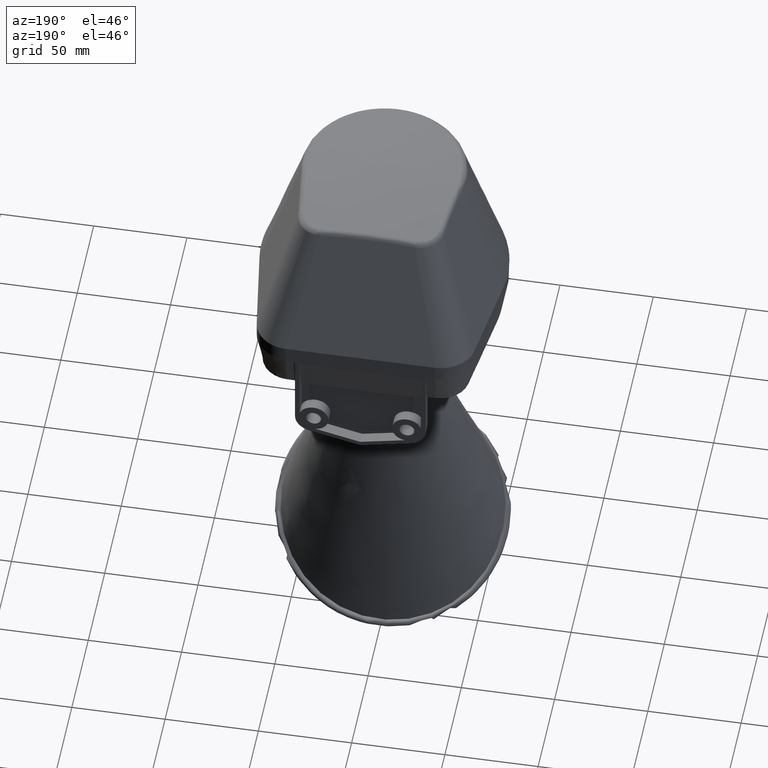
[diagram: clean part render]
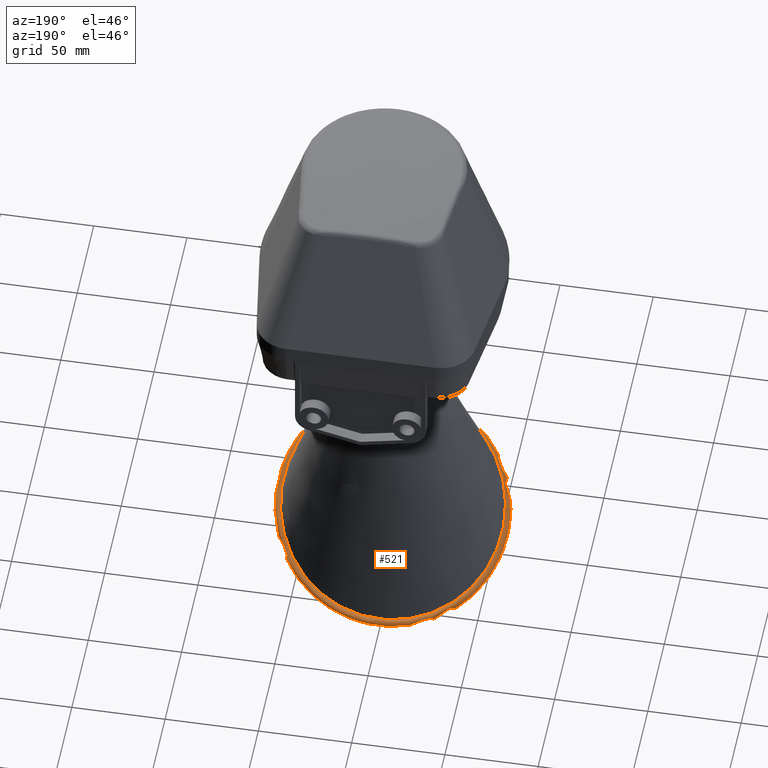
[diagram: same view with one face highlighted and labeled with its STEP entity id]
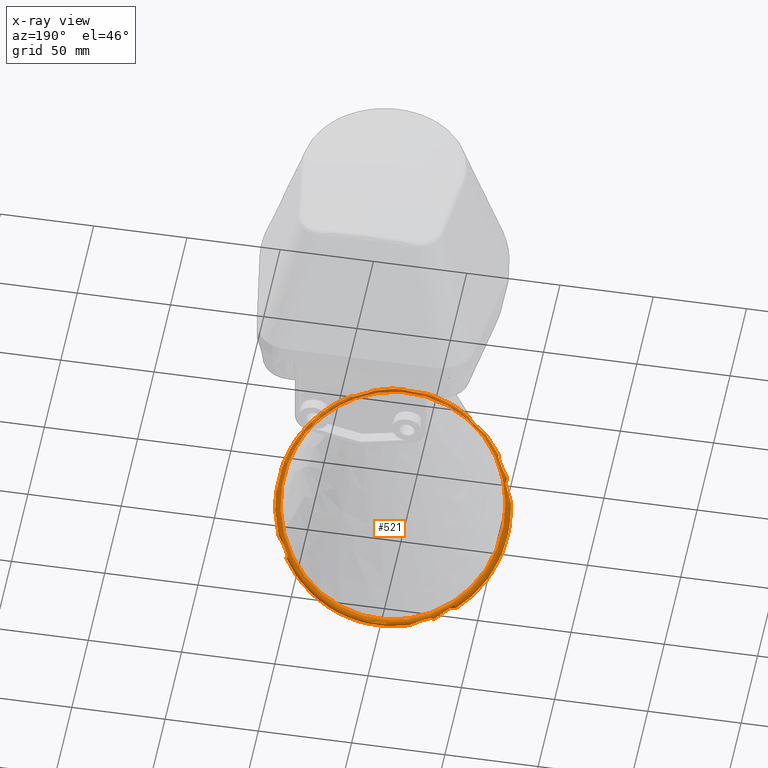
[diagram: x-ray of the same camera — body ghosted, the highlighted face saturated]
A machine part, auxiliary view. The second image highlights one B-rep face of the part: STEP entity #521.
The next image is the same camera in x-ray: the body ghosted, the highlighted face saturated — about 16% of this face is hidden behind the body in this view.
In plain terms, the highlighted toroidal blend (fillet) surface has major radius 61 mm and minor (blend) radius 1.75 mm.
Its self-contained STEP definition (entity closure, byte-faithful):
#39=TOROIDAL_SURFACE('',#3251,61.,1.75);
#80=FACE_BOUND('',#927,.T.);
#81=FACE_BOUND('',#928,.T.);
#521=ADVANCED_FACE('',(#80,#81),#39,.T.);
#927=EDGE_LOOP('',(#1750,#1751));
#928=EDGE_LOOP('',(#1752));
#1750=ORIENTED_EDGE('',*,*,#2654,.F.);
#1751=ORIENTED_EDGE('',*,*,#2785,.T.);
#1752=ORIENTED_EDGE('',*,*,#2639,.T.);
#2328=VERTEX_POINT('',#10129);
#2341=VERTEX_POINT('',#13159);
#2342=VERTEX_POINT('',#13160);
#2639=EDGE_CURVE('',#2328,#2328,#3031,.T.);
#2654=EDGE_CURVE('',#2341,#2342,#3039,.T.);
#2785=EDGE_CURVE('',#2341,#2342,#3067,.T.);
#3031=B_SPLINE_CURVE_WITH_KNOTS('',3,(#9991,#9992,#9993,#9994,#9995,#9996,
#9997,#9998,#9999,#10000,#10001,#10002,#10003,#10004,#10005,#10006,#10007,
#10008,#10009,#10010,#10011,#10012,#10013,#10014,#10015,#10016,#10017,#10018,
#10019,#10020,#10021,#10022,#10023,#10024,#10025,#10026,#10027,#10028,#10029,
#10030,#10031,#10032,#10033,#10034,#10035,#10036,#10037,#10038,#10039,#10040,
#10041,#10042,#10043,#10044,#10045,#10046,#10047,#10048,#10049,#10050,#10051,
#10052,#10053,#10054,#10055,#10056,#10057,#10058,#10059,#10060,#10061,#10062,
#10063,#10064,#10065,#10066,#10067,#10068,#10069,#10070,#10071,#10072,#10073,
#10074,#10075,#10076,#10077,#10078,#10079,#10080,#10081,#10082,#10083,#10084,
#10085,#10086,#10087,#10088,#10089,#10090,#10091,#10092,#10093,#10094,#10095,
#10096,#10097,#10098,#10099,#10100,#10101,#10102,#10103,#10104,#10105,#10106,
#10107,#10108,#10109,#10110,#10111,#10112,#10113,#10114,#10115,#10116,#10117,
#10118,#10119,#10120,#10121,#10122,#10123,#10124,#10125,#10126,#10127,#10128),
 .UNSPECIFIED.,.T.,.F.,(2,2,2,2,2,2,2,2,2,2,2,2,2,2,2,2,2,2,2,2,2,2,2,2,
2,2,2,2,2,2,2,2,2,2,2,2,2,2,2,2,2,2,2,2,2,2,2,2,2,2,2,2,2,2,2,2,2,2,2,2,
2,2,2,2,2,2,2,2,2,2,2),(-0.0156249999999998,0.,0.0156250000000002,0.0312500000000005,
0.0468750000000007,0.0625000000000009,0.0937500000000014,0.101562500000001,
0.109375000000002,0.125000000000002,0.140625000000002,0.148437500000002,
0.156250000000002,0.187500000000003,0.203125000000003,0.210937500000003,
0.218750000000003,0.250000000000003,0.257812500000003,0.265625000000004,
0.281250000000004,0.312500000000004,0.320312500000004,0.328125000000004,
0.335937500000004,0.343750000000004,0.375000000000004,0.390625000000004,
0.398437500000004,0.406250000000004,0.437500000000004,0.445312500000004,
0.453125000000004,0.468750000000004,0.500000000000004,0.507812500000004,
0.515625000000004,0.531250000000004,0.546875000000004,0.554687500000004,
0.562500000000004,0.593750000000004,0.601562500000004,0.609375000000004,
0.625000000000004,0.656250000000004,0.664062500000004,0.671875000000004,
0.687500000000004,0.703125000000004,0.710937500000004,0.718750000000004,
0.750000000000003,0.765625000000003,0.773437500000003,0.781250000000003,
0.812500000000003,0.820312500000003,0.828125000000003,0.843750000000002,
0.875000000000002,0.882812500000002,0.890625000000001,0.906250000000001,
0.921875000000001,0.929687500000001,0.937500000000001,0.96875,0.984375,1.,
1.015625),.UNSPECIFIED.);
#3039=B_SPLINE_CURVE_WITH_KNOTS('',3,(#12876,#12877,#12878,#12879,#12880,
#12881,#12882,#12883,#12884,#12885,#12886,#12887,#12888,#12889,#12890,#12891,
#12892,#12893,#12894,#12895,#12896,#12897,#12898,#12899,#12900,#12901,#12902,
#12903,#12904,#12905,#12906,#12907,#12908,#12909,#12910,#12911,#12912,#12913,
#12914,#12915,#12916,#12917,#12918,#12919,#12920,#12921,#12922,#12923,#12924,
#12925,#12926,#12927,#12928,#12929,#12930,#12931,#12932,#12933,#12934,#12935,
#12936,#12937,#12938,#12939,#12940,#12941,#12942,#12943,#12944,#12945,#12946,
#12947,#12948,#12949,#12950,#12951,#12952,#12953,#12954,#12955,#12956,#12957,
#12958,#12959,#12960,#12961,#12962,#12963,#12964,#12965,#12966,#12967,#12968,
#12969,#12970,#12971,#12972,#12973,#12974,#12975,#12976,#12977,#12978,#12979,
#12980,#12981,#12982,#12983,#12984,#12985,#12986,#12987,#12988,#12989,#12990,
#12991,#12992,#12993,#12994,#12995,#12996,#12997,#12998,#12999,#13000,#13001,
#13002,#13003,#13004,#13005,#13006,#13007,#13008,#13009,#13010,#13011,#13012,
#13013,#13014,#13015,#13016,#13017,#13018,#13019,#13020,#13021,#13022,#13023,
#13024,#13025,#13026,#13027,#13028,#13029,#13030,#13031,#13032,#13033,#13034,
#13035,#13036,#13037,#13038,#13039,#13040,#13041,#13042,#13043,#13044,#13045,
#13046,#13047,#13048,#13049,#13050,#13051,#13052,#13053,#13054,#13055,#13056,
#13057,#13058,#13059,#13060,#13061,#13062,#13063,#13064,#13065,#13066,#13067,
#13068,#13069,#13070,#13071,#13072,#13073,#13074,#13075,#13076,#13077,#13078,
#13079,#13080,#13081,#13082,#13083,#13084,#13085,#13086,#13087,#13088,#13089,
#13090,#13091,#13092,#13093,#13094,#13095,#13096,#13097,#13098,#13099,#13100,
#13101,#13102,#13103,#13104,#13105,#13106,#13107,#13108,#13109,#13110,#13111,
#13112,#13113,#13114,#13115,#13116,#13117,#13118,#13119,#13120,#13121,#13122,
#13123,#13124,#13125,#13126,#13127,#13128,#13129,#13130,#13131,#13132,#13133,
#13134,#13135,#13136,#13137,#13138,#13139,#13140,#13141,#13142,#13143,#13144,
#13145,#13146,#13147,#13148,#13149,#13150,#13151,#13152,#13153,#13154,#13155,
#13156,#13157,#13158),.UNSPECIFIED.,.F.,.F.,(4,2,2,1,2,2,1,2,2,1,1,1,2,2,
1,1,2,2,1,2,2,1,1,1,2,2,1,2,2,2,2,1,1,1,2,2,1,1,1,2,2,1,1,2,2,1,1,1,2,2,
1,1,2,2,1,2,2,1,2,2,2,2,1,2,2,1,1,1,2,2,1,1,1,2,2,1,1,2,2,1,1,1,1,1,2,2,
1,1,1,2,2,1,2,2,1,1,2,2,1,1,1,2,2,1,1,1,1,1,2,2,1,1,2,2,1,1,1,2,2,1,1,1,
2,2,1,2,2,2,2,1,2,2,1,2,2,1,1,2,2,1,1,1,2,2,1,1,2,2,1,1,1,2,2,1,1,1,2,2,
2,2,1,2,2,1,1,1,2,2,1,2,2,1,1,2,2,1,1,1,2,2,1,2,2,1,2,2,4),(0.,0.015624999999999,
0.0234374999999986,0.0312499999999981,0.0390624999999976,0.0429687499999973,
0.0468749999999971,0.062499999999996,0.0644531249999959,0.0664062499999959,
0.0703124999999958,0.0781249999999956,0.0820312499999956,0.0839843749999956,
0.0859374999999955,0.0937499999999952,0.101562499999995,0.105468749999995,
0.109374999999994,0.124999999999994,0.126953124999994,0.128906249999993,
0.132812499999993,0.140624999999993,0.144531249999992,0.146484374999992,
0.148437499999992,0.156249999999992,0.171874999999992,0.187499999999991,
0.189453124999991,0.191406249999991,0.195312499999991,0.203124999999992,
0.207031249999992,0.208984374999992,0.210937499999992,0.218749999999992,
0.226562499999992,0.228515624999992,0.229492187499992,0.230468749999992,
0.234374999999992,0.249999999999993,0.251953124999993,0.253906249999993,
0.257812499999993,0.265624999999994,0.269531249999994,0.271484374999994,
0.273437499999994,0.281249999999994,0.289062499999994,0.292968749999994,
0.296874999999994,0.312499999999994,0.316406249999994,0.320312499999994,
0.328124999999994,0.343749999999995,0.351562499999995,0.355468749999995,
0.359374999999995,0.374999999999995,0.376953124999995,0.378906249999995,
0.382812499999995,0.390624999999995,0.394531249999995,0.396484374999995,
0.398437499999995,0.406249999999995,0.414062499999995,0.416015624999995,
0.416992187499995,0.417968749999995,0.421874999999995,0.437499999999996,
0.438476562499996,0.439453124999996,0.441406249999995,0.445312499999995,
0.453124999999995,0.457031249999995,0.458007812499995,0.458984374999995,
0.460937499999995,0.468749999999995,0.476562499999995,0.478515624999995,
0.479492187499995,0.480468749999995,0.484374999999995,0.499999999999995,
0.515624999999995,0.519531249999995,0.520507812499995,0.521484374999995,
0.523437499999995,0.531249999999995,0.539062499999995,0.541015624999995,
0.541992187499995,0.542968749999995,0.546874999999996,0.554687499999996,
0.558593749999996,0.560546874999996,0.561523437499996,0.562499999999996,
0.578124999999997,0.582031249999997,0.583007812499997,0.583984374999997,
0.585937499999997,0.593749999999997,0.601562499999997,0.603515624999997,
0.605468749999997,0.609374999999997,0.617187499999997,0.621093749999997,
0.623046874999997,0.624999999999997,0.640624999999998,0.644531249999998,
0.648437499999998,0.656249999999998,0.671874999999999,0.679687499999999,
0.683593749999999,0.687499999999999,0.703125,0.70703125,0.7109375,0.71875,
0.7265625,0.728515625,0.73046875,0.734375,0.7421875,0.74609375,0.748046875,
0.75,0.765625,0.76953125,0.7705078125,0.771484375,0.7734375,0.78125,0.789062500000001,
0.791015625000001,0.792968750000001,0.796875000000001,0.804687500000002,
0.808593750000002,0.810546875000002,0.812500000000002,0.828125000000002,
0.843750000000002,0.851562500000002,0.853515625000002,0.855468750000002,
0.859375000000002,0.867187500000003,0.871093750000003,0.873046875000003,
0.875000000000003,0.890625000000003,0.894531250000003,0.898437500000003,
0.906250000000002,0.914062500000002,0.916015625000002,0.917968750000002,
0.921875000000002,0.929687500000002,0.933593750000002,0.935546875000002,
0.937500000000002,0.953125000000002,0.957031250000001,0.960937500000001,
0.968750000000001,0.976562500000001,0.984375000000001,1.),.UNSPECIFIED.);
#3067=B_SPLINE_CURVE_WITH_KNOTS('',3,(#17959,#17960,#17961,#17962,#17963,
#17964,#17965,#17966,#17967,#17968,#17969,#17970,#17971,#17972,#17973,#17974,
#17975,#17976,#17977,#17978,#17979,#17980,#17981,#17982,#17983,#17984,#17985,
#17986,#17987,#17988,#17989,#17990,#17991,#17992,#17993,#17994,#17995,#17996),
 .UNSPECIFIED.,.F.,.F.,(4,2,2,2,2,2,2,2,2,2,2,2,2,2,2,2,2,2,4),(0.,0.0625000000000003,
0.125000000000001,0.15625,0.1875,0.25,0.375,0.40625,0.4375,0.5,0.5625,0.625,
0.65625,0.6875,0.75,0.875,0.90625,0.9375,1.),.UNSPECIFIED.);
#3251=AXIS2_PLACEMENT_3D('',#17997,#3758,#3759);
#3758=DIRECTION('',(0.,-0.707106781186548,-0.707106781186548));
#3759=DIRECTION('',(0.,0.707106781186548,-0.707106781186548));
#9991=CARTESIAN_POINT('',(1.99254655144815,-68.7149678293249,-38.2484288974567));
#9992=CARTESIAN_POINT('',(-1.9925465514482,-68.7149678293249,-38.2484288974567));
#9993=CARTESIAN_POINT('',(-3.98672453428899,-68.6432326701295,-38.3168588868938));
#9994=CARTESIAN_POINT('',(-7.93655866243135,-68.359332217929,-38.5876779782975));
#9995=CARTESIAN_POINT('',(-9.89438894880622,-68.1476291285512,-38.7897255646932));
#9996=CARTESIAN_POINT('',(-13.776044768174,-67.5854388219634,-39.3264725296977));
#9997=CARTESIAN_POINT('',(-15.7019247260628,-67.2346837086966,-39.6615754721033));
#9998=CARTESIAN_POINT('',(-19.510481440942,-66.3931425685584,-40.4662103179138));
#9999=CARTESIAN_POINT('',(-21.3701979636324,-65.9078160875172,-40.9306962198774));
#10000=CARTESIAN_POINT('',(-26.8194617493588,-64.2640745215948,-42.5057755693407));
#10001=CARTESIAN_POINT('',(-30.2806773614256,-62.920308119758,-43.7959882838443));
#10002=CARTESIAN_POINT('',(-34.3864146756421,-60.9252334927908,-45.7214260359882));
#10003=CARTESIAN_POINT('',(-35.1986138896248,-60.5091327371037,-46.1234621241476));
#10004=CARTESIAN_POINT('',(-36.7885476691139,-59.6509436774606,-46.9538317789743));
#10005=CARTESIAN_POINT('',(-37.5653585709158,-59.209476869,-47.3815459299793));
#10006=CARTESIAN_POINT('',(-39.8421935012138,-57.8487146898048,-48.7018415110804));
#10007=CARTESIAN_POINT('',(-41.2889933697084,-56.8934050471846,-49.6314131705699));
#10008=CARTESIAN_POINT('',(-44.0423140311734,-54.8889308604602,-51.5891377490056));
#10009=CARTESIAN_POINT('',(-45.3489980123677,-53.8399303663931,-52.617232063536));
#10010=CARTESIAN_POINT('',(-47.2026948794874,-52.1963445302365,-54.2351749578216));
#10011=CARTESIAN_POINT('',(-47.8028372294123,-51.6367799158903,-54.787149177547));
#10012=CARTESIAN_POINT('',(-48.967156916607,-50.494137285442,-55.9169334599035));
#10013=CARTESIAN_POINT('',(-49.5325700088307,-49.9095947695369,-56.4961989015291));
#10014=CARTESIAN_POINT('',(-52.2399063017562,-46.9578784844475,-59.4283574827582));
#10015=CARTESIAN_POINT('',(-54.0450678161909,-44.4894445584403,-61.9032268383654));
#10016=CARTESIAN_POINT('',(-56.2354061393776,-40.6382430779849,-65.8057528646767));
#10017=CARTESIAN_POINT('',(-56.8786418137203,-39.3295119460468,-67.1384811857799));
#10018=CARTESIAN_POINT('',(-57.7107509997756,-37.3282572868412,-69.1863310311035));
#10019=CARTESIAN_POINT('',(-57.965504562738,-36.6553931400232,-69.8765041621064));
#10020=CARTESIAN_POINT('',(-58.4256245403781,-35.3111765026723,-71.2583578628009));
#10021=CARTESIAN_POINT('',(-58.6317515366176,-34.6380659010832,-71.9518306297399));
#10022=CARTESIAN_POINT('',(-59.544777367183,-31.2674609134085,-75.4315833575321));
#10023=CARTESIAN_POINT('',(-59.9026470831526,-28.5551638831609,-78.2548130213335));
#10024=CARTESIAN_POINT('',(-59.886117077451,-25.1391551489228,-81.8272121118538));
#10025=CARTESIAN_POINT('',(-59.8592760489069,-24.4547103388222,-82.5439475393611));
#10026=CARTESIAN_POINT('',(-59.7578739138089,-23.0830080320818,-83.9817104379625));
#10027=CARTESIAN_POINT('',(-59.6834220941004,-22.3985049675075,-84.6998495050356));
#10028=CARTESIAN_POINT('',(-59.390999772654,-20.3604079794882,-86.8397391982717));
#10029=CARTESIAN_POINT('',(-59.1039081415143,-19.0172783884746,-88.2519668256886));
#10030=CARTESIAN_POINT('',(-57.9711866119017,-15.0324131402824,-92.4449632583953));
#10031=CARTESIAN_POINT('',(-56.8570672714545,-12.4343041469198,-95.1821300488662));
#10032=CARTESIAN_POINT('',(-54.9931341382854,-9.25995438711639,-98.5239235078102));
#10033=CARTESIAN_POINT('',(-54.5971064865382,-8.62984686590875,-99.1871188993163));
#10034=CARTESIAN_POINT('',(-53.7634989520136,-7.3870625540896,-100.494752761546));
#10035=CARTESIAN_POINT('',(-53.3252426463081,-6.77325647243542,-101.140425721343));
#10036=CARTESIAN_POINT('',(-52.4058037645921,-5.56081735280297,-102.415469377078));
#10037=CARTESIAN_POINT('',(-51.92463645261,-4.96214800999131,-103.044816476348));
#10038=CARTESIAN_POINT('',(-50.9190939404619,-3.77998038102774,-104.287004909712));
#10039=CARTESIAN_POINT('',(-50.3935443047339,-3.19531936632947,-104.901103682811));
#10040=CARTESIAN_POINT('',(-47.673805690621,-0.328989347515654,-107.910830987048));
#10041=CARTESIAN_POINT('',(-45.2071277413832,1.78626814452602,-110.127365407246));
#10042=CARTESIAN_POINT('',(-41.0798548425023,4.69675333483617,-113.172444447354));
#10043=CARTESIAN_POINT('',(-39.6324091174604,5.62292835910816,-114.140497924072));
#10044=CARTESIAN_POINT('',(-37.3502379462714,6.94387546632659,-115.520041529518));
#10045=CARTESIAN_POINT('',(-36.5689203743171,7.37374112501148,-115.968857296815));
#10046=CARTESIAN_POINT('',(-34.9847319085085,8.20173008784941,-116.832883430116));
#10047=CARTESIAN_POINT('',(-34.1806766451651,8.6006537091043,-117.248929460779));
#10048=CARTESIAN_POINT('',(-30.1015873434458,10.520836419315,-119.250966894543));
#10049=CARTESIAN_POINT('',(-26.6518140492014,11.8210514588352,-120.604533393733));
#10050=CARTESIAN_POINT('',(-22.1053545448942,13.1492153902747,-121.985676987893));
#10051=CARTESIAN_POINT('',(-21.1842445884996,13.3998159602476,-122.246265384018));
#10052=CARTESIAN_POINT('',(-19.3179210858327,13.8704131946659,-122.735489913223));
#10053=CARTESIAN_POINT('',(-18.3714363513188,14.0905892136825,-122.964283448513));
#10054=CARTESIAN_POINT('',(-15.5276149586599,14.6975363625237,-123.594848167779));
#10055=CARTESIAN_POINT('',(-13.6159201876014,15.0335235605415,-123.943879417762));
#10056=CARTESIAN_POINT('',(-7.83461971281294,15.8410753784341,-124.782269466892));
#10057=CARTESIAN_POINT('',(-3.91926109162261,16.1138352781683,-125.065405256576));
#10058=CARTESIAN_POINT('',(1.05423110526243,16.110400565003,-125.061766105055));
#10059=CARTESIAN_POINT('',(2.05021442716707,16.0922691667241,-125.042860686515));
#10060=CARTESIAN_POINT('',(4.02839469929484,16.0216632768051,-124.969691018655));
#10061=CARTESIAN_POINT('',(5.01300432782562,15.9693002395298,-124.915328109441));
#10062=CARTESIAN_POINT('',(7.95360346059434,15.7616872499328,-124.699889797477));
#10063=CARTESIAN_POINT('',(9.89639360158123,15.5561519218564,-124.486467167306));
#10064=CARTESIAN_POINT('',(13.7470769859692,15.0119113370592,-123.921440163703));
#10065=CARTESIAN_POINT('',(15.6549699098018,14.6733342262384,-123.569709968845));
#10066=CARTESIAN_POINT('',(18.4900991164703,14.0636256090609,-122.936267514406));
#10067=CARTESIAN_POINT('',(19.4314018365918,13.8432249531852,-122.707231547068));
#10068=CARTESIAN_POINT('',(21.3019016097401,13.3685345871712,-122.213738977013));
#10069=CARTESIAN_POINT('',(22.2246043797738,13.1159053588056,-121.95104326296));
#10070=CARTESIAN_POINT('',(26.7767490506766,11.7779074737255,-120.559646591979));
#10071=CARTESIAN_POINT('',(30.223847908843,10.4707795584595,-119.198813669671));
#10072=CARTESIAN_POINT('',(34.2928403701196,8.5458128673661,-117.191740637956));
#10073=CARTESIAN_POINT('',(35.0945352058421,8.14613313949464,-116.774885156688));
#10074=CARTESIAN_POINT('',(36.6733669374912,7.31709790863329,-115.909727609707));
#10075=CARTESIAN_POINT('',(37.4526042722931,6.88648763659935,-115.460118210128));
#10076=CARTESIAN_POINT('',(39.7348819927576,5.55948698509518,-114.074219752865));
#10077=CARTESIAN_POINT('',(41.1812264003535,4.62968458153651,-113.102302461389));
#10078=CARTESIAN_POINT('',(45.3024131920478,1.70974434684915,-110.047242933287));
#10079=CARTESIAN_POINT('',(47.7613505391203,-0.409797907740693,-107.826067625546));
#10080=CARTESIAN_POINT('',(50.4687936111404,-3.27774927124817,-104.814525895028));
#10081=CARTESIAN_POINT('',(50.9926566021254,-3.86358590902303,-104.19917755278));
#10082=CARTESIAN_POINT('',(51.99253102716,-5.04528404579599,-102.957432782943));
#10083=CARTESIAN_POINT('',(52.4698270359203,-5.64236543819908,-102.329727374762));
#10084=CARTESIAN_POINT('',(53.835144855547,-7.45200711221734,-100.426589968889));
#10085=CARTESIAN_POINT('',(54.6566807559824,-8.68305253820517,-99.13126757021));
#10086=CARTESIAN_POINT('',(56.1260144845144,-11.193339282148,-96.4885427718649));
#10087=CARTESIAN_POINT('',(56.7737048788576,-12.4727762353299,-95.1412657554231));
#10088=CARTESIAN_POINT('',(57.613826657394,-14.4288606366466,-93.0814079087056));
#10089=CARTESIAN_POINT('',(57.871908748436,-15.0870876989114,-92.388308485341));
#10090=CARTESIAN_POINT('',(58.3434816897951,-16.4162416362041,-90.9890564512096));
#10091=CARTESIAN_POINT('',(58.5568558441938,-17.0872640273282,-90.2827658658808));
#10092=CARTESIAN_POINT('',(59.5013072892342,-20.4387870370128,-86.7562836822169));
#10093=CARTESIAN_POINT('',(59.8794791826908,-23.136707206206,-83.9212228939699));
#10094=CARTESIAN_POINT('',(59.8946011753034,-27.2157034003468,-79.6556647029002));
#10095=CARTESIAN_POINT('',(59.8072403698722,-28.5805843819103,-78.2314900049442));
#10096=CARTESIAN_POINT('',(59.5325705811323,-30.6372104196364,-76.0927619434623));
#10097=CARTESIAN_POINT('',(59.416830810192,-31.3244568223426,-75.3792832263485));
#10098=CARTESIAN_POINT('',(59.1398003243824,-32.6873169065103,-73.9669882221613));
#10099=CARTESIAN_POINT('',(58.97830648832,-33.3648052159465,-73.2662236204387));
#10100=CARTESIAN_POINT('',(58.057144633146,-36.7330984283211,-69.7893802684207));
#10101=CARTESIAN_POINT('',(56.9602008668087,-39.3672864477065,-67.0935216384738));
#10102=CARTESIAN_POINT('',(55.1284001272119,-42.583784056933,-63.8343158777325));
#10103=CARTESIAN_POINT('',(54.7387748239775,-43.223211135821,-63.1880404947158));
#10104=CARTESIAN_POINT('',(53.9120171890054,-44.4940860913585,-61.9067848252435));
#10105=CARTESIAN_POINT('',(53.4739079409189,-45.1266826142402,-61.2706651171002));
#10106=CARTESIAN_POINT('',(52.1018401228704,-46.9912392666378,-59.4004264003439));
#10107=CARTESIAN_POINT('',(51.106779492738,-48.1963882373385,-58.197917536855));
#10108=CARTESIAN_POINT('',(47.8855243918526,-51.6989306746481,-54.7189997136455));
#10109=CARTESIAN_POINT('',(45.4253379212532,-53.884452799754,-52.5701038668555));
#10110=CARTESIAN_POINT('',(41.9444831481259,-56.4155835354341,-50.0981123255008));
#10111=CARTESIAN_POINT('',(41.2264000210526,-56.9124308424351,-49.6137533837348));
#10112=CARTESIAN_POINT('',(39.7651673354755,-57.87452601226,-48.6773746253373));
#10113=CARTESIAN_POINT('',(39.0203275288951,-58.3411091037241,-48.2240560141919));
#10114=CARTESIAN_POINT('',(36.7438319728098,-59.6979068107686,-46.9077134205973));
#10115=CARTESIAN_POINT('',(35.1702356411789,-60.5451592892255,-46.0882171679522));
#10116=CARTESIAN_POINT('',(31.9131592359901,-62.1262320591304,-44.5623646555916));
#10117=CARTESIAN_POINT('',(30.2295238369857,-62.8597975005872,-43.8560705565719));
#10118=CARTESIAN_POINT('',(27.6205322310599,-63.8732686915512,-42.8819805883106));
#10119=CARTESIAN_POINT('',(26.7368832285209,-64.1965246441082,-42.57154795201));
#10120=CARTESIAN_POINT('',(24.9411399343395,-64.8133358929443,-41.9796224999268));
#10121=CARTESIAN_POINT('',(24.0307311774486,-65.1062277860177,-41.6987920978181));
#10122=CARTESIAN_POINT('',(19.4576856844304,-66.4807355334488,-40.3817446444845));
#10123=CARTESIAN_POINT('',(15.6959944916843,-67.3074460196219,-39.5918839051849));
#10124=CARTESIAN_POINT('',(9.90243338818263,-68.1464247526565,-38.7908755139595));
#10125=CARTESIAN_POINT('',(7.94579993613471,-68.3586332643869,-38.5883447321824));
#10126=CARTESIAN_POINT('',(3.98035737892952,-68.6437250168017,-38.3163892200004));
#10127=CARTESIAN_POINT('',(1.99254655144815,-68.7149678293249,-38.2484288974567));
#10128=CARTESIAN_POINT('',(-1.9925465514482,-68.7149678293249,-38.2484288974567));
#10129=CARTESIAN_POINT('',(0.,-68.7149678293248,-38.2484288974567));
#12876=CARTESIAN_POINT('',(-43.0263229585187,-57.5573117480803,-53.7861815553408));
#12877=CARTESIAN_POINT('',(-44.1467466243269,-56.7689677603644,-54.5745255430568));
#12878=CARTESIAN_POINT('',(-45.2220628964553,-55.9512361379897,-55.3922571654315));
#12879=CARTESIAN_POINT('',(-46.7663731470831,-54.6812656349524,-56.6622276684687));
#12880=CARTESIAN_POINT('',(-47.2705258457849,-54.2499439402117,-57.0935493632094));
#12881=CARTESIAN_POINT('',(-48.248201393757,-53.3799181983653,-57.9635751050559));
#12882=CARTESIAN_POINT('',(-49.2013660314358,-52.4972292595292,-58.8462640438919));
#12883=CARTESIAN_POINT('',(-50.1055088485285,-51.5892139267141,-59.7542793767071));
#12884=CARTESIAN_POINT('',(-50.7652327786281,-50.8987050293605,-60.4447882740607));
#12885=CARTESIAN_POINT('',(-50.9829201377028,-50.6660105790398,-60.6774827243814));
#12886=CARTESIAN_POINT('',(-51.405793590543,-50.204497554603,-61.1389957488182));
#12887=CARTESIAN_POINT('',(-52.4469378915965,-49.04409069755,-62.2994026058711));
#12888=CARTESIAN_POINT('',(-53.4078855374142,-47.8505623606922,-63.492930942729));
#12889=CARTESIAN_POINT('',(-54.2149968268804,-46.7525393920607,-64.5909539113605));
#12890=CARTESIAN_POINT('',(-54.3020127972707,-46.6327620238499,-64.7107312795713));
#12891=CARTESIAN_POINT('',(-54.4753169790589,-46.3914607271541,-64.9520325762671));
#12892=CARTESIAN_POINT('',(-54.7328162023154,-46.0287170134053,-65.3147762900158));
#12893=CARTESIAN_POINT('',(-55.3164483772679,-45.1767726337216,-66.1667206696995));
#12894=CARTESIAN_POINT('',(-55.9441437864028,-44.1904536147997,-67.1530396886215));
#12895=CARTESIAN_POINT('',(-56.385430750146,-43.4412131261457,-67.9022801772755));
#12896=CARTESIAN_POINT('',(-56.6011601331663,-43.0650093444083,-68.2784839590129));
#12897=CARTESIAN_POINT('',(-56.6731688737765,-42.9376908927941,-68.405802410627));
#12898=CARTESIAN_POINT('',(-56.8108370069199,-42.6910018508574,-68.6524914525637));
#12899=CARTESIAN_POINT('',(-57.1509189927161,-42.0732942420022,-69.270199061419));
#12900=CARTESIAN_POINT('',(-57.7262714435883,-40.9525555099415,-70.3909377934796));
#12901=CARTESIAN_POINT('',(-58.1853650019658,-39.9437352522928,-71.3997580511284));
#12902=CARTESIAN_POINT('',(-58.5100611048496,-39.1823920397915,-72.1611012636296));
#12903=CARTESIAN_POINT('',(-58.6157789652842,-38.9258228213216,-72.4176704820996));
#12904=CARTESIAN_POINT('',(-58.814094969256,-38.428025598516,-72.9154677049052));
#12905=CARTESIAN_POINT('',(-59.2938921311062,-37.1808678192556,-74.1626254841656));
#12906=CARTESIAN_POINT('',(-59.6937250525596,-35.9203864287632,-75.423106874658));
#12907=CARTESIAN_POINT('',(-59.996000428782,-34.7763601772331,-76.5671331261881));
#12908=CARTESIAN_POINT('',(-60.0274240501933,-34.6543829342426,-76.6891103691786));
#12909=CARTESIAN_POINT('',(-60.0895738044235,-34.40717744059,-76.9363158628312));
#12910=CARTESIAN_POINT('',(-60.180495914072,-34.0361446718683,-77.3073486315528));
#12911=CARTESIAN_POINT('',(-60.376529851373,-33.1688298471516,-78.1746634562696));
#12912=CARTESIAN_POINT('',(-60.5637282897088,-32.1740204527335,-79.1694728506876));
#12913=CARTESIAN_POINT('',(-60.6764968580974,-31.4252190680065,-79.9182742354146));
#12914=CARTESIAN_POINT('',(-60.7282760988978,-31.0503693191575,-80.2931239842637));
#12915=CARTESIAN_POINT('',(-60.7450412718154,-30.9231137547043,-80.4203795487169));
#12916=CARTESIAN_POINT('',(-60.7754739032315,-30.6811217288665,-80.6623715745546));
#12917=CARTESIAN_POINT('',(-60.8479338406117,-30.0760248861796,-81.2674684172416));
#12918=CARTESIAN_POINT('',(-60.9022855721918,-29.4703441530298,-81.8731491503914));
#12919=CARTESIAN_POINT('',(-60.9979619728478,-28.0155893237814,-83.3279039796397));
#12920=CARTESIAN_POINT('',(-61.0153900243942,-27.0432749766657,-84.3002183267554));
#12921=CARTESIAN_POINT('',(-60.9575275558732,-25.101408289318,-86.2420850141032));
#12922=CARTESIAN_POINT('',(-60.8822369311901,-24.1319316009688,-87.2115617024524));
#12923=CARTESIAN_POINT('',(-60.7453806641963,-23.0429090638163,-88.3005842396049));
#12924=CARTESIAN_POINT('',(-60.7286402374781,-22.9157532664757,-88.4277400369455));
#12925=CARTESIAN_POINT('',(-60.6941450032881,-22.6658622302478,-88.6776310731734));
#12926=CARTESIAN_POINT('',(-60.6400992766134,-22.2912483731827,-89.0522449302385));
#12927=CARTESIAN_POINT('',(-60.497872453311,-21.4187082543013,-89.9247850491199));
#12928=CARTESIAN_POINT('',(-60.2984815061579,-20.425082703436,-90.9184105999852));
#12929=CARTESIAN_POINT('',(-60.1213037911161,-19.6825359076078,-91.6609573958133));
#12930=CARTESIAN_POINT('',(-60.0281091828157,-19.3117079042472,-92.0317853991739));
#12931=CARTESIAN_POINT('',(-59.996714593894,-19.1897976853242,-92.153695618097));
#12932=CARTESIAN_POINT('',(-59.9295695700765,-18.9355784919918,-92.4079148114294));
#12933=CARTESIAN_POINT('',(-59.7577077750379,-18.300693601308,-93.0427997021132));
#12934=CARTESIAN_POINT('',(-59.4123634245158,-17.163868631903,-94.1796246715182));
#12935=CARTESIAN_POINT('',(-59.0094300828696,-16.0365921966188,-95.3069011068024));
#12936=CARTESIAN_POINT('',(-58.7655820489259,-15.4136429735863,-95.9298503298349));
#12937=CARTESIAN_POINT('',(-58.6912278680943,-15.2269571344707,-96.1165361689504));
#12938=CARTESIAN_POINT('',(-58.6667739550909,-15.1660702153895,-96.1774230880317));
#12939=CARTESIAN_POINT('',(-58.6151258760704,-15.0385923643371,-96.3049009390841));
#12940=CARTESIAN_POINT('',(-58.4849832220857,-14.7201432177812,-96.6233500856399));
#12941=CARTESIAN_POINT('',(-57.9169124902434,-13.3878119048262,-97.955681398595));
#12942=CARTESIAN_POINT('',(-57.294096230941,-12.1385634261237,-99.2049298772975));
#12943=CARTESIAN_POINT('',(-56.6746681069915,-11.0283795052235,-100.315113798198));
#12944=CARTESIAN_POINT('',(-56.6027106786546,-10.9011262294391,-100.442367073982));
#12945=CARTESIAN_POINT('',(-56.4589216451392,-10.6503268679562,-100.693166435465));
#12946=CARTESIAN_POINT('',(-56.24077987968,-10.2749177809029,-101.068575522518));
#12947=CARTESIAN_POINT('',(-55.7145749206397,-9.40449293064393,-101.939000372777));
#12948=CARTESIAN_POINT('',(-55.073866381617,-8.42236095594455,-102.921132347477));
#12949=CARTESIAN_POINT('',(-54.5638363951173,-7.69524143697456,-103.648251866447));
#12950=CARTESIAN_POINT('',(-54.3039049714954,-7.33326158783201,-104.010231715589));
#12951=CARTESIAN_POINT('',(-54.2169239726011,-7.21351152022037,-104.129981783201));
#12952=CARTESIAN_POINT('',(-54.037598869074,-6.96950877581693,-104.373984527604));
#12953=CARTESIAN_POINT('',(-53.5852738753592,-6.36115507500998,-104.982338228411));
#12954=CARTESIAN_POINT('',(-52.734978772598,-5.2809968553719,-106.062496448049));
#12955=CARTESIAN_POINT('',(-51.9278042967936,-4.34201666627439,-107.001476637147));
#12956=CARTESIAN_POINT('',(-51.3031647124339,-3.64571669341898,-107.697776610002));
#12957=CARTESIAN_POINT('',(-51.092055632318,-3.41524534564497,-107.928247957776));
#12958=CARTESIAN_POINT('',(-50.6584332752215,-2.95173845195305,-108.391754851468));
#12959=CARTESIAN_POINT('',(-49.5590467002587,-1.80087470198147,-109.54261860144));
#12960=CARTESIAN_POINT('',(-48.3830067141884,-0.689528373300712,-110.65396493012));
#12961=CARTESIAN_POINT('',(-47.1456439992323,0.390204018347295,-111.733697321768));
#12962=CARTESIAN_POINT('',(-46.8928397751841,0.606505652846704,-111.949998956268));
#12963=CARTESIAN_POINT('',(-46.3838230284105,1.03347528120764,-112.376968584629));
#12964=CARTESIAN_POINT('',(-45.6117483870055,1.66848504191447,-113.011978345336));
#12965=CARTESIAN_POINT('',(-44.8140251818666,2.28716075711767,-113.630654060539));
#12966=CARTESIAN_POINT('',(-43.1843806866104,3.50273346018589,-114.846226763607));
#12967=CARTESIAN_POINT('',(-42.0523161368346,4.28410350008962,-115.627596803511));
#12968=CARTESIAN_POINT('',(-40.2947936663667,5.40625156458219,-116.749744868003));
#12969=CARTESIAN_POINT('',(-39.6986747331446,5.77224769581063,-117.115740999232));
#12970=CARTESIAN_POINT('',(-38.7890791687118,6.30916205724975,-117.652655360671));
#12971=CARTESIAN_POINT('',(-38.4830175788405,6.48627659788853,-117.82976990131));
#12972=CARTESIAN_POINT('',(-37.8700388124135,6.83408787847768,-118.177581181899));
#12973=CARTESIAN_POINT('',(-36.3263991047264,7.69278368613791,-119.036276989559));
#12974=CARTESIAN_POINT('',(-34.7267954389401,8.4973175247352,-119.840810828156));
#12975=CARTESIAN_POINT('',(-33.2468580899012,9.18240136174735,-120.525894665169));
#12976=CARTESIAN_POINT('',(-33.0850851744002,9.2565022952091,-120.59999559863));
#12977=CARTESIAN_POINT('',(-32.7578025778495,9.40486826642839,-120.74836156985));
#12978=CARTESIAN_POINT('',(-32.2654734577431,9.62571599524868,-120.96920929867));
#12979=CARTESIAN_POINT('',(-31.1068689338651,10.1291187664353,-121.472612069856));
#12980=CARTESIAN_POINT('',(-29.7602658735176,10.6772165710813,-122.020709874502));
#12981=CARTESIAN_POINT('',(-28.7334508748917,11.0678751884618,-122.411368491883));
#12982=CARTESIAN_POINT('',(-28.2172329250178,11.2598020411347,-122.603295344556));
#12983=CARTESIAN_POINT('',(-28.0442299027835,11.3233720981083,-122.666865401529));
#12984=CARTESIAN_POINT('',(-27.7037194112995,11.4470665300185,-122.79055983344));
#12985=CARTESIAN_POINT('',(-26.8505769661953,11.7534069491689,-123.09690025259));
#12986=CARTESIAN_POINT('',(-25.2981246174601,12.278758758013,-123.622252061434));
#12987=CARTESIAN_POINT('',(-23.7187987526485,12.7624130538548,-124.105906357276));
#12988=CARTESIAN_POINT('',(-22.8320644124489,13.0166315817521,-124.360124885173));
#12989=CARTESIAN_POINT('',(-22.5654842454708,13.0920284419337,-124.435521745355));
#12990=CARTESIAN_POINT('',(-22.4760597813972,13.1171456857421,-124.460638989163));
#12991=CARTESIAN_POINT('',(-22.3016222671586,13.1658145305956,-124.509307834017));
#12992=CARTESIAN_POINT('',(-21.8651802301245,13.2867639182297,-124.630257221651));
#12993=CARTESIAN_POINT('',(-20.0248103943901,13.7795741317959,-125.123067435217));
#12994=CARTESIAN_POINT('',(-18.2442171024864,14.1910992323471,-125.534592535768));
#12995=CARTESIAN_POINT('',(-16.7117679261591,14.5015793550239,-125.845072658445));
#12996=CARTESIAN_POINT('',(-16.6256251370556,14.5188803406243,-125.862373644045));
#12997=CARTESIAN_POINT('',(-16.4496258742224,14.5539338905089,-125.89742719393));
#12998=CARTESIAN_POINT('',(-16.1854856618288,14.6060901408936,-125.949583444315));
#12999=CARTESIAN_POINT('',(-15.5681692725708,14.7248195373617,-126.068312840783));
#13000=CARTESIAN_POINT('',(-14.3295795860291,14.9504042459135,-126.293897549335));
#13001=CARTESIAN_POINT('',(-12.9050041544941,15.1810745770941,-126.524567880515));
#13002=CARTESIAN_POINT('',(-11.7401880728956,15.3464423501787,-126.6899356536));
#13003=CARTESIAN_POINT('',(-11.2910042364673,15.4065113861408,-126.750004689562));
#13004=CARTESIAN_POINT('',(-11.1112364898002,15.4302562842308,-126.773749587652));
#13005=CARTESIAN_POINT('',(-11.0235760094012,15.4416896065124,-126.785182909934));
#13006=CARTESIAN_POINT('',(-10.7615326013478,15.4754576552643,-126.818950958685));
#13007=CARTESIAN_POINT('',(-9.88752535683519,15.5853042698995,-126.928797573321));
#13008=CARTESIAN_POINT('',(-8.30954935770328,15.7586062454007,-127.102099548822));
#13009=CARTESIAN_POINT('',(-6.72395262415693,15.8928331315544,-127.236326434976));
#13010=CARTESIAN_POINT('',(-5.84041946162603,15.9538358845054,-127.297329187927));
#13011=CARTESIAN_POINT('',(-5.57520074756646,15.9713226460292,-127.31481594945));
#13012=CARTESIAN_POINT('',(-5.48657772032342,15.9770251117206,-127.320518415142));
#13013=CARTESIAN_POINT('',(-5.31546327852601,15.9877809595768,-127.331274262998));
#13014=CARTESIAN_POINT('',(-4.88763588673471,16.0140303574616,-127.357523660883));
#13015=CARTESIAN_POINT('',(-4.45960205845457,16.0370786465672,-127.380571949988));
#13016=CARTESIAN_POINT('',(-2.74680614856952,16.1190282548967,-127.462521558318));
#13017=CARTESIAN_POINT('',(-1.37438371183219,16.1518085877283,-127.495301891149));
#13018=CARTESIAN_POINT('',(1.37440178325776,16.1518105453315,-127.495303848753));
#13019=CARTESIAN_POINT('',(3.08981769287138,16.1108354696592,-127.45432877308));
#13020=CARTESIAN_POINT('',(4.88762467789275,16.0140302475369,-127.357523550958));
#13021=CARTESIAN_POINT('',(5.31547278622675,15.9877801117538,-127.331273415175));
#13022=CARTESIAN_POINT('',(5.48659593565527,15.9770239555707,-127.320517258992));
#13023=CARTESIAN_POINT('',(5.57521446693964,15.9713219104413,-127.314815213862));
#13024=CARTESIAN_POINT('',(5.84042026511904,15.9538363383122,-127.297329641733));
#13025=CARTESIAN_POINT('',(6.72391469009212,15.8928371331841,-127.236330436605));
#13026=CARTESIAN_POINT('',(8.30948053441935,15.7586128816742,-127.102106185095));
#13027=CARTESIAN_POINT('',(9.8874877857476,15.5853075385171,-126.928800841938));
#13028=CARTESIAN_POINT('',(10.7615339694721,15.4754569688302,-126.818950272251));
#13029=CARTESIAN_POINT('',(11.0235903539019,15.4416876085148,-126.785180911936));
#13030=CARTESIAN_POINT('',(11.1112547397287,15.4302539167685,-126.77374722019));
#13031=CARTESIAN_POINT('',(11.2910134958684,15.4065104667549,-126.750003770176));
#13032=CARTESIAN_POINT('',(11.7401759475688,15.3464448700843,-126.689938173505));
#13033=CARTESIAN_POINT('',(12.9049506195537,15.1810836874664,-126.524576990887));
#13034=CARTESIAN_POINT('',(14.3295170024938,14.9504145210954,-126.293907824517));
#13035=CARTESIAN_POINT('',(15.5681354489628,14.7248247535348,-126.068318056956));
#13036=CARTESIAN_POINT('',(16.1854753875463,14.606091308008,-125.949584611429));
#13037=CARTESIAN_POINT('',(16.4496276573711,14.5539329966937,-125.897426300115));
#13038=CARTESIAN_POINT('',(16.6256353951282,14.5188780004962,-125.862371303917));
#13039=CARTESIAN_POINT('',(16.7117906263629,14.5015746385388,-125.84506794196));
#13040=CARTESIAN_POINT('',(18.2441612166648,14.1911129971843,-125.534606300605));
#13041=CARTESIAN_POINT('',(20.0247317354234,13.7795929113313,-125.123086214752));
#13042=CARTESIAN_POINT('',(21.8651691156716,13.2867660076541,-124.630259311075));
#13043=CARTESIAN_POINT('',(22.3016326785611,13.1658113393065,-124.509304642728));
#13044=CARTESIAN_POINT('',(22.4760792386481,13.1171402776173,-124.460633581038));
#13045=CARTESIAN_POINT('',(22.565497275304,13.0920249997281,-124.435518303149));
#13046=CARTESIAN_POINT('',(22.8320647031103,13.0166321604578,-124.360125463879));
#13047=CARTESIAN_POINT('',(23.7187608536649,12.7624256618243,-124.105918965245));
#13048=CARTESIAN_POINT('',(25.2980564454644,12.2787806546921,-123.622273958113));
#13049=CARTESIAN_POINT('',(26.8505400705462,11.753418352213,-123.096911655634));
#13050=CARTESIAN_POINT('',(27.7037212627035,11.4470652343958,-122.790558537817));
#13051=CARTESIAN_POINT('',(28.0442489627131,11.3233651735093,-122.66685847693));
#13052=CARTESIAN_POINT('',(28.217240968194,11.259799510371,-122.603292813792));
#13053=CARTESIAN_POINT('',(28.7334360329898,11.0678819309554,-122.411375234377));
#13054=CARTESIAN_POINT('',(29.7602151512086,10.6772377835573,-122.020731086978));
#13055=CARTESIAN_POINT('',(31.1068099300109,10.1291429660924,-121.472636269514));
#13056=CARTESIAN_POINT('',(32.2654418216594,9.62572854082659,-120.969221844248));
#13057=CARTESIAN_POINT('',(32.7577900881223,9.40487276000181,-120.748366063423));
#13058=CARTESIAN_POINT('',(33.0850870972022,9.2565007413575,-120.599994044779));
#13059=CARTESIAN_POINT('',(33.2468820460877,9.18238997776238,-120.525883281184));
#13060=CARTESIAN_POINT('',(34.7267452332676,8.49734387361402,-119.840837177035));
#13061=CARTESIAN_POINT('',(36.3263288127211,7.69281981442214,-119.036313117843));
#13062=CARTESIAN_POINT('',(37.8700263287418,6.8340936036686,-118.17758690709));
#13063=CARTESIAN_POINT('',(38.4830344500754,6.48626694724227,-117.829760250663));
#13064=CARTESIAN_POINT('',(38.7890783716143,6.30916344483094,-117.652656748252));
#13065=CARTESIAN_POINT('',(39.6986397945266,5.77227046125934,-117.115763764681));
#13066=CARTESIAN_POINT('',(40.2947474870965,5.406281238823,-116.749774542244));
#13067=CARTESIAN_POINT('',(42.0522707966905,4.28413187134836,-115.62762517477));
#13068=CARTESIAN_POINT('',(43.1843797746633,3.50273529406893,-114.84622859749));
#13069=CARTESIAN_POINT('',(44.8139835472868,2.28719368352778,-113.630686986949));
#13070=CARTESIAN_POINT('',(45.6117019657399,1.66852129715209,-113.012014600573));
#13071=CARTESIAN_POINT('',(46.3837951824052,1.03349653911887,-112.37698984254));
#13072=CARTESIAN_POINT('',(46.8928295042292,0.606512840061673,-111.950006143483));
#13073=CARTESIAN_POINT('',(47.1456672888677,0.390182862355747,-111.733676165777));
#13074=CARTESIAN_POINT('',(48.3829700119409,-0.689492180273604,-110.654001123148));
#13075=CARTESIAN_POINT('',(49.5589954587303,-1.80082521488442,-109.542668088537));
#13076=CARTESIAN_POINT('',(50.6584243101648,-2.95173073947203,-108.391762563949));
#13077=CARTESIAN_POINT('',(51.0920681231102,-3.41525874850523,-107.928234554916));
#13078=CARTESIAN_POINT('',(51.3031641238382,-3.64571472027343,-107.697778583148));
#13079=CARTESIAN_POINT('',(51.9277809560353,-4.34198764328699,-107.001505660134));
#13080=CARTESIAN_POINT('',(52.7349404681919,-5.28095041294821,-106.062542890473));
#13081=CARTESIAN_POINT('',(53.5852533251294,-6.36113099151422,-104.982362311907));
#13082=CARTESIAN_POINT('',(54.037600192095,-6.96951168193177,-104.373981621489));
#13083=CARTESIAN_POINT('',(54.216935005708,-7.21352638761815,-104.129966915803));
#13084=CARTESIAN_POINT('',(54.3039086544664,-7.33326572338712,-104.010227580034));
#13085=CARTESIAN_POINT('',(54.5638293104532,-7.69522914552659,-103.648264157895));
#13086=CARTESIAN_POINT('',(55.0738424248254,-8.42232306466414,-102.921170238757));
#13087=CARTESIAN_POINT('',(55.7145471202495,-9.40444992294862,-101.939043380473));
#13088=CARTESIAN_POINT('',(56.2407650371408,-10.2748956859528,-101.068597617468));
#13089=CARTESIAN_POINT('',(56.4589158533217,-10.6503191762413,-100.69317412718));
#13090=CARTESIAN_POINT('',(56.6027116978421,-10.9011293489101,-100.442363954511));
#13091=CARTESIAN_POINT('',(56.6746772867509,-11.0283963882355,-100.315096915186));
#13092=CARTESIAN_POINT('',(57.2940772114597,-12.1385227753118,-99.2049705281094));
#13093=CARTESIAN_POINT('',(57.9168857976938,-13.3877566050699,-97.9557366983513));
#13094=CARTESIAN_POINT('',(58.4849795258045,-14.7201372133869,-96.6233560900343));
#13095=CARTESIAN_POINT('',(58.6151295034835,-15.0386019467404,-96.3048913566807));
#13096=CARTESIAN_POINT('',(58.666780659853,-15.1660863404964,-96.1774069629247));
#13097=CARTESIAN_POINT('',(58.6912311543084,-15.2269643199871,-96.116528983434));
#13098=CARTESIAN_POINT('',(58.7655822688814,-15.4136411757769,-95.9298521276442));
#13099=CARTESIAN_POINT('',(59.0094211054185,-16.0365635422267,-95.3069297611945));
#13100=CARTESIAN_POINT('',(59.4123471028296,-17.1638194261902,-94.1796738772309));
#13101=CARTESIAN_POINT('',(59.7576988468717,-18.3006683091201,-93.0428249943011));
#13102=CARTESIAN_POINT('',(59.9295698666975,-18.9355819242779,-92.4079113791433));
#13103=CARTESIAN_POINT('',(59.996718989812,-19.1898138425344,-92.1536794608867));
#13104=CARTESIAN_POINT('',(60.0281107293081,-19.311711712667,-92.0317815907542));
#13105=CARTESIAN_POINT('',(60.1213019840854,-19.6825232075085,-91.6609700959126));
#13106=CARTESIAN_POINT('',(60.298474406887,-20.4250443103022,-90.918448993119));
#13107=CARTESIAN_POINT('',(60.4978639569442,-21.4186648998023,-89.9248284036188));
#13108=CARTESIAN_POINT('',(60.6400945096091,-22.2912263115017,-89.0522669919195));
#13109=CARTESIAN_POINT('',(60.6941428956865,-22.6658547870627,-88.6776385163584));
#13110=CARTESIAN_POINT('',(60.7286401386126,-22.9157567896219,-88.4277365137993));
#13111=CARTESIAN_POINT('',(60.7453822156714,-23.0429226268634,-88.3005706765578));
#13112=CARTESIAN_POINT('',(60.8822397577263,-24.1319305207066,-87.2115627827145));
#13113=CARTESIAN_POINT('',(60.9575303241094,-25.1014042765032,-86.2420890269179));
#13114=CARTESIAN_POINT('',(61.0153902926557,-27.0432852661908,-84.3002080372303));
#13115=CARTESIAN_POINT('',(60.9979599041793,-28.0155882459332,-83.327905057488));
#13116=CARTESIAN_POINT('',(60.9022829724764,-29.4703437194939,-81.8731495839272));
#13117=CARTESIAN_POINT('',(60.8479313920278,-30.0760278715167,-81.2674654319045));
#13118=CARTESIAN_POINT('',(60.7754720712807,-30.6811320710883,-80.6623612323329));
#13119=CARTESIAN_POINT('',(60.745039723758,-30.9231273547208,-80.4203659487004));
#13120=CARTESIAN_POINT('',(60.7282762212075,-31.0503727145563,-80.2931205888649));
#13121=CARTESIAN_POINT('',(60.6764999882419,-31.4252060408309,-79.9182872625903));
#13122=CARTESIAN_POINT('',(60.5637360207804,-32.1739819042424,-79.1695113991788));
#13123=CARTESIAN_POINT('',(60.3765380580438,-33.1687865655739,-78.1747067378473));
#13124=CARTESIAN_POINT('',(60.1804995852931,-34.036122882257,-77.3073704211641));
#13125=CARTESIAN_POINT('',(60.0895744708237,-34.4071703546965,-76.9363229487246));
#13126=CARTESIAN_POINT('',(60.027422477589,-34.6543868714666,-76.6891064319545));
#13127=CARTESIAN_POINT('',(59.9959960803392,-34.7763761873201,-76.567117116101));
#13128=CARTESIAN_POINT('',(59.6937391248162,-35.9203452556693,-75.4231480477518));
#13129=CARTESIAN_POINT('',(59.2939102950324,-37.1808125160537,-74.1626807873675));
#13130=CARTESIAN_POINT('',(58.814096755134,-38.428017923656,-72.9154753797651));
#13131=CARTESIAN_POINT('',(58.6157725623655,-38.9258391384744,-72.4176541649467));
#13132=CARTESIAN_POINT('',(58.5100634664804,-39.1823888789677,-72.1611044244535));
#13133=CARTESIAN_POINT('',(58.1853804786072,-39.9437039763402,-71.399789327081));
#13134=CARTESIAN_POINT('',(57.7262949431368,-40.9525064581073,-70.3909868453139));
#13135=CARTESIAN_POINT('',(57.1509302245436,-42.0732695419548,-69.2702237614663));
#13136=CARTESIAN_POINT('',(56.8108340297737,-42.6910060787655,-68.6524872246557));
#13137=CARTESIAN_POINT('',(56.6731596215548,-42.9377079238192,-68.4057853796019));
#13138=CARTESIAN_POINT('',(56.6011591934082,-43.06501233798,-68.2784809654411));
#13139=CARTESIAN_POINT('',(56.3854400096972,-43.4411999297081,-67.9022933737131));
#13140=CARTESIAN_POINT('',(55.9441687815643,-44.1904152923008,-67.1530780111203));
#13141=CARTESIAN_POINT('',(55.3164757012104,-45.1767298256378,-66.1667634777833));
#13142=CARTESIAN_POINT('',(54.7328292434129,-46.028695669286,-65.3147976341352));
#13143=CARTESIAN_POINT('',(54.4753204016808,-46.3914540223449,-64.9520392810763));
#13144=CARTESIAN_POINT('',(54.3020090304076,-46.6327662875736,-64.7107270158476));
#13145=CARTESIAN_POINT('',(54.214985906268,-46.7525541210158,-64.5909391824054));
#13146=CARTESIAN_POINT('',(53.4079182483301,-47.8505233412682,-63.4929699621531));
#13147=CARTESIAN_POINT('',(52.4469806515983,-49.0440385740586,-62.2994547293625));
#13148=CARTESIAN_POINT('',(51.4057983616436,-50.2044905974865,-61.1390027059347));
#13149=CARTESIAN_POINT('',(50.9829058702039,-50.6660263501086,-60.6774669533125));
#13150=CARTESIAN_POINT('',(50.7652370564264,-50.8987019380297,-60.4447913653914));
#13151=CARTESIAN_POINT('',(50.1055384431871,-51.5891858180405,-59.7543074853806));
#13152=CARTESIAN_POINT('',(49.2014112005895,-52.4971854167103,-58.8463078867109));
#13153=CARTESIAN_POINT('',(48.2482257747677,-53.3798938660244,-57.9635994373967));
#13154=CARTESIAN_POINT('',(47.2705112573338,-54.2499567406606,-57.0935365627605));
#13155=CARTESIAN_POINT('',(46.7663911613163,-54.6812523011497,-56.6622410022714));
#13156=CARTESIAN_POINT('',(45.2221179482797,-55.951192898289,-55.3923004051321));
#13157=CARTESIAN_POINT('',(44.1466795615318,-56.7690119935587,-54.5744813098625));
#13158=CARTESIAN_POINT('',(43.0263139645722,-57.5573184562809,-53.7861748471402));
#13159=CARTESIAN_POINT('',(-43.0263228568812,-57.5573116758541,-53.786181627567));
#13160=CARTESIAN_POINT('',(43.0263137285814,-57.5573182885799,-53.7861750148413));
#17959=CARTESIAN_POINT('',(-43.0263297614629,-57.557306673818,-53.7861866296033));
#17960=CARTESIAN_POINT('',(-41.6147429861016,-58.563940962236,-52.7795523411768));
#17961=CARTESIAN_POINT('',(-40.1312522246539,-59.5234211332392,-51.8198141017028));
#17962=CARTESIAN_POINT('',(-37.052002949353,-61.3234672003658,-50.0188947016615));
#17963=CARTESIAN_POINT('',(-35.4552959852881,-62.1662097243642,-49.1755430423725));
#17964=CARTESIAN_POINT('',(-32.9754353575826,-63.3452767371768,-47.9954017232067));
#17965=CARTESIAN_POINT('',(-32.1346315138527,-63.7240753498261,-47.6162204537373));
#17966=CARTESIAN_POINT('',(-30.4244814204399,-64.4530570341367,-46.8864391191568));
#17967=CARTESIAN_POINT('',(-29.5541155838999,-64.8036382528403,-46.5354389707772));
#17968=CARTESIAN_POINT('',(-26.9062969306006,-65.809340478206,-45.5284512386584));
#17969=CARTESIAN_POINT('',(-25.1085454940456,-66.4124570278157,-44.9244587928779));
#17970=CARTESIAN_POINT('',(-19.6210835844113,-68.0268727595792,-43.3074882786604));
#17971=CARTESIAN_POINT('',(-15.8379272944725,-68.8448397831718,-42.4879656044466));
#17972=CARTESIAN_POINT('',(-10.9499642637286,-69.538478767258,-41.7929423716495));
#17973=CARTESIAN_POINT('',(-9.96244066814265,-69.6607922378422,-41.6703817581511));
#17974=CARTESIAN_POINT('',(-7.98069366587855,-69.8704702897728,-41.4602757056785));
#17975=CARTESIAN_POINT('',(-6.98782365834949,-69.9577782216437,-41.3727854913703));
#17976=CARTESIAN_POINT('',(-4.00326052720751,-70.1674339032448,-41.1626884274741));
#17977=CARTESIAN_POINT('',(-2.00562684495575,-70.2376261898595,-41.0923470872284));
#17978=CARTESIAN_POINT('',(2.00563053411441,-70.237626103521,-41.0923471737603));
#17979=CARTESIAN_POINT('',(4.01286274509628,-70.1669404802903,-41.1631828972085));
#17980=CARTESIAN_POINT('',(7.98849581427942,-69.8873025098775,-41.4434095656776));
#17981=CARTESIAN_POINT('',(9.95915641717878,-69.6787231675541,-41.6524179951029));
#17982=CARTESIAN_POINT('',(12.8895887710429,-69.2634086974306,-42.0685614297283));
#17983=CARTESIAN_POINT('',(13.8621348136999,-69.1078750680365,-42.2243997991616));
#17984=CARTESIAN_POINT('',(15.7986377013525,-68.7623730263484,-42.5705596217779));
#17985=CARTESIAN_POINT('',(16.7639213744976,-68.5721042827422,-42.7611840280456));
#17986=CARTESIAN_POINT('',(19.6378511846931,-67.9507707113326,-43.3836484105433));
#17987=CARTESIAN_POINT('',(21.5092287224324,-67.4729297577745,-43.8623094386795));
#17988=CARTESIAN_POINT('',(26.9939095800427,-65.8546046823711,-45.4831907463823));
#17989=CARTESIAN_POINT('',(30.4791614204436,-64.531302181697,-46.8082940650998));
#17990=CARTESIAN_POINT('',(34.6171980621736,-62.5648985827491,-48.7764913069054));
#17991=CARTESIAN_POINT('',(35.4353677779349,-62.1550173432711,-49.1867068117715));
#17992=CARTESIAN_POINT('',(37.0407756069215,-61.3075176171538,-50.0348022254113));
#17993=CARTESIAN_POINT('',(37.8272723818825,-60.8703835254077,-50.4721984659573));
#17994=CARTESIAN_POINT('',(40.1383828523646,-59.5190155275927,-51.8242213105417));
#17995=CARTESIAN_POINT('',(41.6147429941072,-58.563940967448,-52.7795523359593));
#17996=CARTESIAN_POINT('',(43.0263297614384,-57.5573066734025,-53.7861866300187));
#17997=CARTESIAN_POINT('',(0.,-25.74426721878,-83.1243523504883));